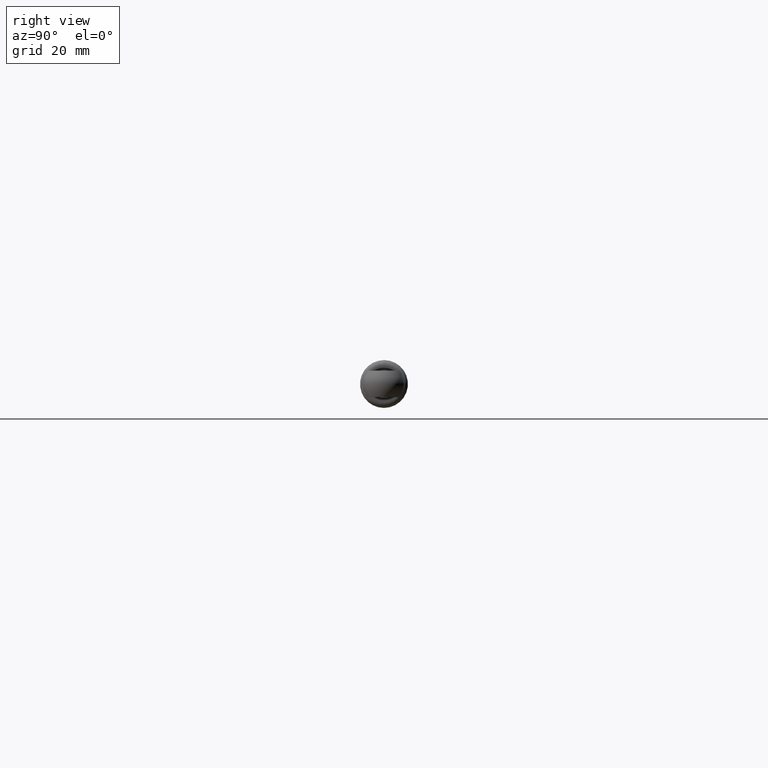
[diagram: clean part render]
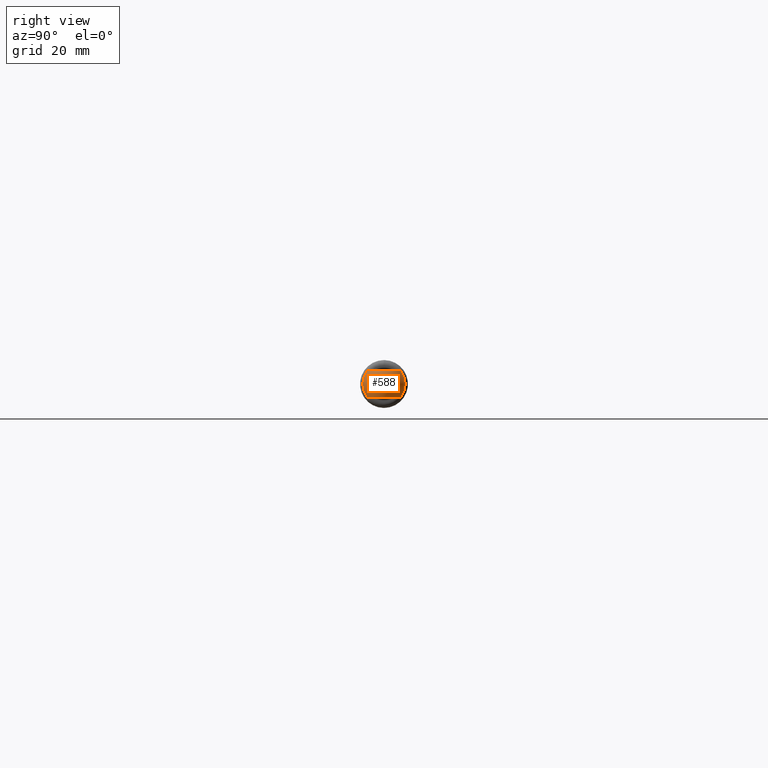
[diagram: same view with one face highlighted and labeled with its STEP entity id]
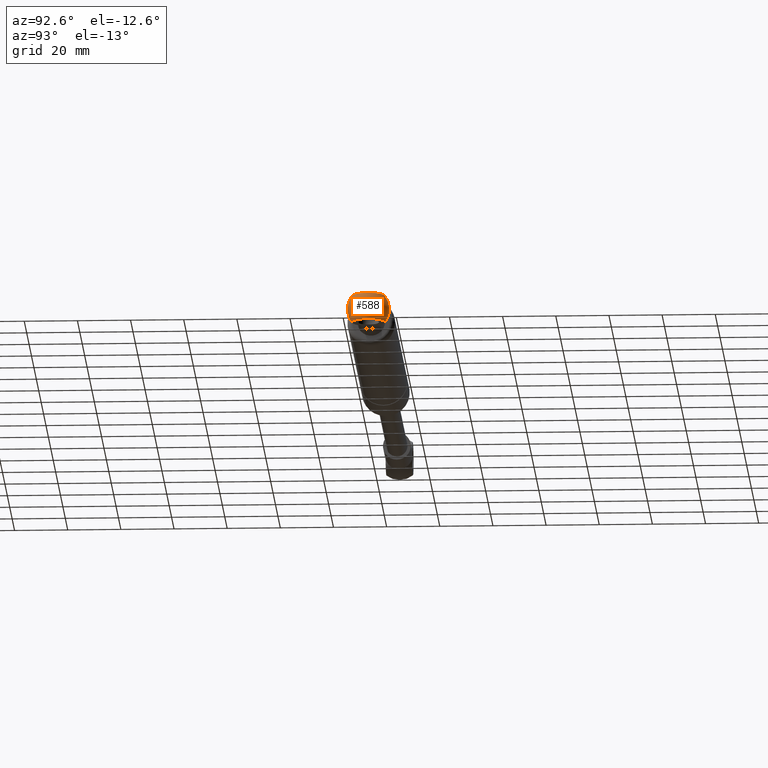
[diagram: same view with one face highlighted and labeled with its STEP entity id]
A machine part, right view. The second image highlights one B-rep face of the part: STEP entity #588.
A second angle (auxiliary view) of the same face is appended — the face is thin or edge-on in the first view.
In plain terms, the highlighted spherical surface has radius 8 mm.
Its self-contained STEP definition (entity closure, byte-faithful):
#31=SPHERICAL_SURFACE('',#681,8.);
#162=FACE_OUTER_BOUND('',#243,.T.);
#243=EDGE_LOOP('',(#472,#473,#474,#475));
#283=CIRCLE('',#674,6.2449979983984);
#285=CIRCLE('',#678,6.2449979983984);
#287=CIRCLE('',#682,5.25);
#288=CIRCLE('',#683,5.25);
#328=VERTEX_POINT('',#1044);
#330=VERTEX_POINT('',#1048);
#332=VERTEX_POINT('',#1055);
#334=VERTEX_POINT('',#1059);
#376=EDGE_CURVE('',#328,#330,#283,.T.);
#381=EDGE_CURVE('',#332,#334,#285,.T.);
#383=EDGE_CURVE('',#330,#332,#287,.T.);
#384=EDGE_CURVE('',#334,#328,#288,.T.);
#472=ORIENTED_EDGE('',*,*,#376,.T.);
#473=ORIENTED_EDGE('',*,*,#383,.T.);
#474=ORIENTED_EDGE('',*,*,#381,.T.);
#475=ORIENTED_EDGE('',*,*,#384,.T.);
#588=ADVANCED_FACE('',(#162),#31,.T.);
#674=AXIS2_PLACEMENT_3D('',#1050,#854,#855);
#678=AXIS2_PLACEMENT_3D('',#1061,#865,#866);
#681=AXIS2_PLACEMENT_3D('',#1064,#871,#872);
#682=AXIS2_PLACEMENT_3D('',#1065,#873,#874);
#683=AXIS2_PLACEMENT_3D('',#1066,#875,#876);
#854=DIRECTION('center_axis',(0.,0.,-1.));
#855=DIRECTION('ref_axis',(0.,-1.,0.));
#865=DIRECTION('center_axis',(-1.0285227879424E-16,-1.26876631169479E-32,
1.));
#866=DIRECTION('ref_axis',(0.,1.,1.26876631169479E-32));
#871=DIRECTION('center_axis',(6.12323399573676E-17,0.,1.));
#872=DIRECTION('ref_axis',(1.,0.,0.));
#873=DIRECTION('center_axis',(-1.22464679914735E-16,1.,0.));
#874=DIRECTION('ref_axis',(1.,0.,0.));
#875=DIRECTION('center_axis',(-1.22464679914735E-16,1.,0.));
#876=DIRECTION('ref_axis',(1.,0.,0.));
#1044=CARTESIAN_POINT('',(-1.60078105935822,15.9636517661752,5.));
#1048=CARTESIAN_POINT('',(1.60078105935822,15.9636517661752,5.));
#1050=CARTESIAN_POINT('Origin',(-2.22044604925031E-15,22.,5.));
#1055=CARTESIAN_POINT('',(1.60078105935822,15.9636517661752,-5.));
#1059=CARTESIAN_POINT('',(-1.60078105935822,15.9636517661752,-5.));
#1061=CARTESIAN_POINT('Origin',(-1.70618465527911E-15,22.,-5.));
#1064=CARTESIAN_POINT('Origin',(-2.22044604925031E-15,22.,0.));
#1065=CARTESIAN_POINT('Origin',(-1.95498350381494E-15,15.9636517661752,
0.));
#1066=CARTESIAN_POINT('Origin',(-1.95498350381494E-15,15.9636517661752,
0.));